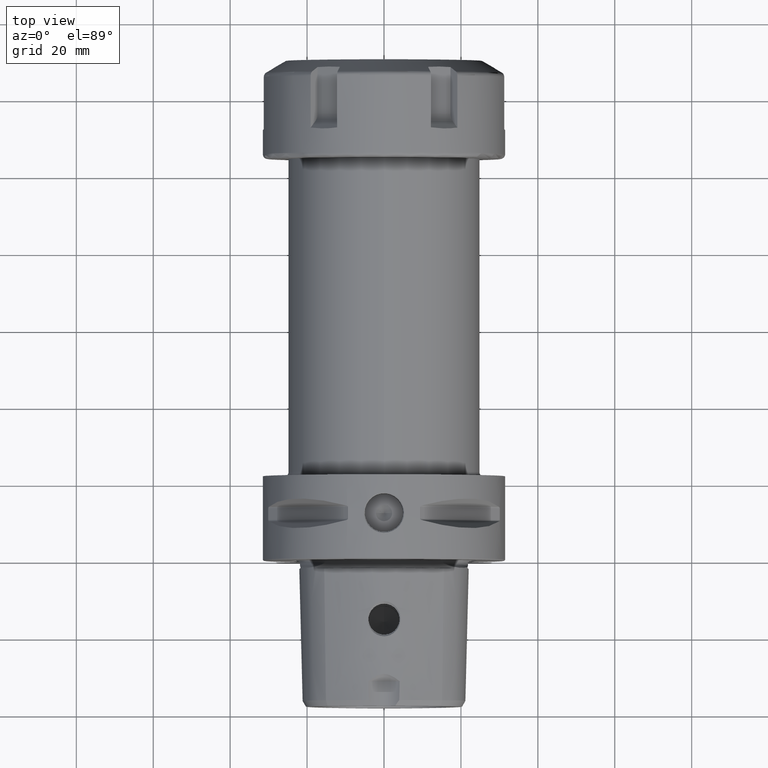
[diagram: clean part render]
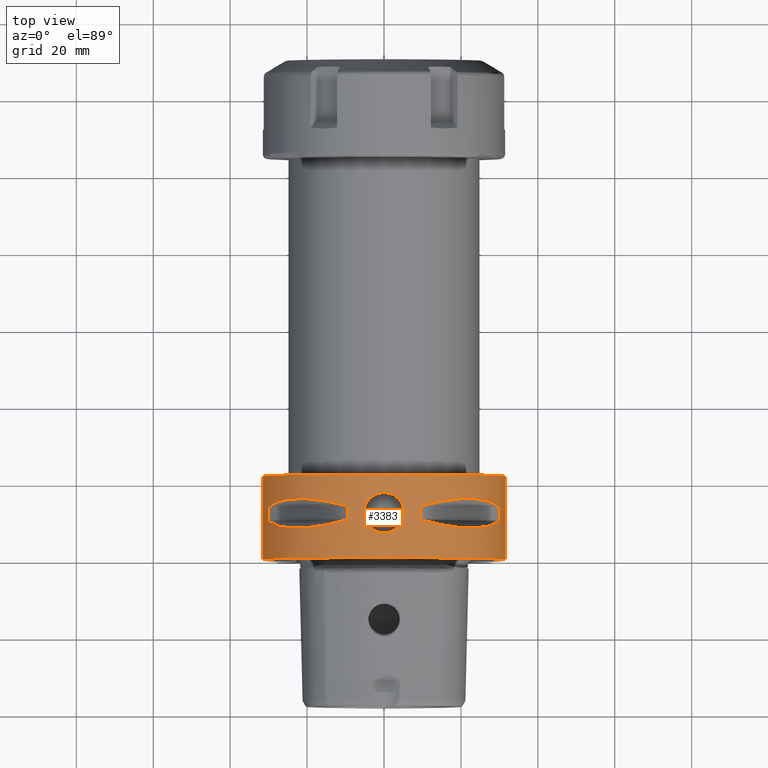
[diagram: same view with one face highlighted and labeled with its STEP entity id]
A machine part, top view. The second image highlights one B-rep face of the part: STEP entity #3383.
In plain terms, the highlighted cylindrical surface (partial cylindrical patch) has radius 31.5 mm, axis along (0, -1, 0).
Its self-contained STEP definition (entity closure, byte-faithful):
#1375=DIRECTION('',(0.E0,-1.E0,0.E0));
#1376=VECTOR('',#1375,2.922649730810E0);
#1377=CARTESIAN_POINT('',(3.008059276032E1,1.346132486541E1,9.349221314525E0));
#1378=LINE('',#1377,#1376);
#1379=CARTESIAN_POINT('',(2.991395484647E1,1.389433756730E1,9.869412618966E0));
#1380=CARTESIAN_POINT('',(2.908518363459E1,1.458150705601E1,1.238139844501E1));
#1381=CARTESIAN_POINT('',(2.691325004580E1,1.553584740593E1,1.689097893205E1));
#1382=CARTESIAN_POINT('',(2.245973816660E1,1.599114523220E1,2.245973816660E1));
#1383=CARTESIAN_POINT('',(1.689097893205E1,1.553584740593E1,2.691325004580E1));
#1384=CARTESIAN_POINT('',(1.238139844501E1,1.458150705601E1,2.908518363459E1));
#1385=CARTESIAN_POINT('',(9.869412618966E0,1.389433756730E1,2.991395484647E1));
#1387=DIRECTION('',(0.E0,-1.E0,0.E0));
#1388=VECTOR('',#1387,2.922649730810E0);
#1389=CARTESIAN_POINT('',(9.349221314525E0,1.346132486541E1,3.008059276032E1));
#1390=LINE('',#1389,#1388);
#1391=CARTESIAN_POINT('',(2.991395484647E1,1.010566243270E1,9.869412618966E0));
#1392=CARTESIAN_POINT('',(2.908518363459E1,9.418492943988E0,1.238139844501E1));
#1393=CARTESIAN_POINT('',(2.691325004580E1,8.464152594070E0,1.689097893205E1));
#1394=CARTESIAN_POINT('',(2.245973816660E1,8.008854767798E0,2.245973816660E1));
#1395=CARTESIAN_POINT('',(1.689097893205E1,8.464152594070E0,2.691325004580E1));
#1396=CARTESIAN_POINT('',(1.238139844501E1,9.418492943988E0,2.908518363459E1));
#1397=CARTESIAN_POINT('',(9.869412618966E0,1.010566243270E1,2.991395484647E1));
#1399=DIRECTION('',(0.E0,-1.E0,0.E0));
#1400=VECTOR('',#1399,2.922649730810E0);
#1401=CARTESIAN_POINT('',(-3.008059276032E1,1.346132486541E1,9.349221314525E0));
#1402=LINE('',#1401,#1400);
#1403=CARTESIAN_POINT('',(-2.991395484647E1,1.010566243270E1,9.869412618966E0));
#1404=CARTESIAN_POINT('',(-2.908518363459E1,9.418492943988E0,1.238139844501E1));
#1405=CARTESIAN_POINT('',(-2.691325004580E1,8.464152594070E0,1.689097893205E1));
#1406=CARTESIAN_POINT('',(-2.245973816660E1,8.008854767798E0,2.245973816660E1));
#1407=CARTESIAN_POINT('',(-1.689097893205E1,8.464152594070E0,2.691325004580E1));
#1408=CARTESIAN_POINT('',(-1.238139844501E1,9.418492943988E0,2.908518363459E1));
#1409=CARTESIAN_POINT('',(-9.869412618966E0,1.010566243270E1,2.991395484647E1));
#1411=DIRECTION('',(0.E0,-1.E0,0.E0));
#1412=VECTOR('',#1411,2.922649730810E0);
#1413=CARTESIAN_POINT('',(-9.349221314525E0,1.346132486541E1,3.008059276032E1));
#1414=LINE('',#1413,#1412);
#1415=CARTESIAN_POINT('',(-9.869412618966E0,1.389433756730E1,2.991395484647E1));
#1416=CARTESIAN_POINT('',(-1.238139844501E1,1.458150705601E1,2.908518363459E1));
#1417=CARTESIAN_POINT('',(-1.689097893205E1,1.553584740593E1,2.691325004580E1));
#1418=CARTESIAN_POINT('',(-2.245973816660E1,1.599114523220E1,2.245973816660E1));
#1419=CARTESIAN_POINT('',(-2.691325004580E1,1.553584740593E1,1.689097893205E1));
#1420=CARTESIAN_POINT('',(-2.908518363459E1,1.458150705601E1,1.238139844501E1));
#1421=CARTESIAN_POINT('',(-2.991395484647E1,1.389433756730E1,9.869412618966E0));
#1423=CARTESIAN_POINT('',(0.E0,3.000029778999E-1,0.E0));
#1424=DIRECTION('',(0.E0,-1.E0,0.E0));
#1425=DIRECTION('',(1.E0,0.E0,0.E0));
#1426=AXIS2_PLACEMENT_3D('',#1423,#1424,#1425);
#1428=DIRECTION('',(4.354476440736E-8,-1.E0,-1.756462563612E-10));
#1429=VECTOR('',#1428,2.169999905527E1);
#1430=CARTESIAN_POINT('',(-3.15E1,2.2E1,0.E0));
#1431=LINE('',#1430,#1429);
#1432=CARTESIAN_POINT('',(0.E0,2.2E1,0.E0));
#1433=DIRECTION('',(0.E0,1.E0,0.E0));
#1434=DIRECTION('',(-1.E0,0.E0,0.E0));
#1435=AXIS2_PLACEMENT_3D('',#1432,#1433,#1434);
#1437=DIRECTION('',(-4.354476407993E-8,-1.E0,1.756460043861E-10));
#1438=VECTOR('',#1437,2.169999905527E1);
#1439=CARTESIAN_POINT('',(3.15E1,2.2E1,0.E0));
#1440=LINE('',#1439,#1438);
#1441=CARTESIAN_POINT('',(5.256201204282E0,1.200000021276E1,3.105803467052E1));
#1442=CARTESIAN_POINT('',(5.256873096785E0,1.162594592516E1,3.105792096932E1));
#1443=CARTESIAN_POINT('',(5.177014581466E0,1.088649592639E1,3.107209729921E1));
#1444=CARTESIAN_POINT('',(4.800942945383E0,9.764868670253E0,3.113330268534E1));
#1445=CARTESIAN_POINT('',(4.169153776873E0,8.745939641349E0,3.122590165956E1));
#1446=CARTESIAN_POINT('',(3.320728407193E0,7.894102238679E0,3.132916281502E1));
#1447=CARTESIAN_POINT('',(2.315171990473E0,7.262633334301E0,3.142089099076E1));
#1448=CARTESIAN_POINT('',(1.194722320056E0,6.868451281862E0,3.148453580901E1));
#1449=CARTESIAN_POINT('',(2.330847440245E-3,6.732242465534E0,3.150769449720E1));
#1450=CARTESIAN_POINT('',(-1.191231924302E0,6.867583815239E0,3.148468576782E1));
#1451=CARTESIAN_POINT('',(-2.312511764338E0,7.261353201516E0,3.142108965125E1));
#1452=CARTESIAN_POINT('',(-3.317944712491E0,7.891925055984E0,3.132945366719E1));
#1453=CARTESIAN_POINT('',(-4.166194290150E0,8.742359626245E0,3.122630082724E1));
#1454=CARTESIAN_POINT('',(-4.799239324230E0,9.761047857447E0,3.113357512101E1));
#1455=CARTESIAN_POINT('',(-5.176814699959E0,1.088452494614E1,3.107213223488E1));
#1456=CARTESIAN_POINT('',(-5.256417589542E0,1.162521038420E1,3.105799774040E1));
#1457=CARTESIAN_POINT('',(-5.256201512035E0,1.199999978679E1,3.105803430618E1));
#1459=CARTESIAN_POINT('',(-5.256201512035E0,1.199999978679E1,3.105803430618E1));
#1460=CARTESIAN_POINT('',(-5.256873790948E0,1.237400298933E1,3.105792053960E1));
#1461=CARTESIAN_POINT('',(-5.177036640267E0,1.311338167853E1,3.107209365765E1));
#1462=CARTESIAN_POINT('',(-4.800999208393E0,1.423501827679E1,3.113329385386E1));
#1463=CARTESIAN_POINT('',(-4.169204864164E0,1.525400295358E1,3.122589505870E1));
#1464=CARTESIAN_POINT('',(-3.320748951397E0,1.610588415043E1,3.132916083811E1));
#1465=CARTESIAN_POINT('',(-2.315197998009E0,1.673735181574E1,3.142088874934E1));
#1466=CARTESIAN_POINT('',(-1.194759498429E0,1.713154381110E1,3.148453492997E1));
#1467=CARTESIAN_POINT('',(-2.300579531862E-3,1.726775898462E1,
3.150769482709E1));
#1468=CARTESIAN_POINT('',(1.191237763372E0,1.713241421074E1,3.148468533335E1));
#1469=CARTESIAN_POINT('',(2.312534594023E0,1.673863742130E1,3.142108819521E1));
#1470=CARTESIAN_POINT('',(3.317959892406E0,1.610805932204E1,3.132945172583E1));
#1471=CARTESIAN_POINT('',(4.166167535200E0,1.525766609377E1,3.122630408102E1));
#1472=CARTESIAN_POINT('',(4.799194274748E0,1.423903899390E1,3.113358215267E1));
#1473=CARTESIAN_POINT('',(5.176794576524E0,1.311558309696E1,3.107213554178E1));
#1474=CARTESIAN_POINT('',(5.256417314487E0,1.237483553859E1,3.105799809921E1));
#1475=CARTESIAN_POINT('',(5.256201204282E0,1.200000021276E1,3.105803467052E1));
#1485=CARTESIAN_POINT('',(9.349221314525E0,1.346132486541E1,3.008059276032E1));
#1486=CARTESIAN_POINT('',(9.349221314525E0,1.349504795022E1,3.008059276032E1));
#1487=CARTESIAN_POINT('',(9.362833969856E0,1.356093160788E1,3.007636824994E1));
#1488=CARTESIAN_POINT('',(9.423024234347E0,1.365492587026E1,3.005758723646E1));
#1489=CARTESIAN_POINT('',(9.505994515085E0,1.373070359192E1,3.003146987333E1));
#1490=CARTESIAN_POINT('',(9.608339142195E0,1.379587241420E1,2.999890758448E1));
#1491=CARTESIAN_POINT('',(9.730187158805E0,1.385140119697E1,2.995963363012E1));
#1492=CARTESIAN_POINT('',(9.821338983855E0,1.388118672269E1,2.992981562260E1));
#1493=CARTESIAN_POINT('',(9.869412618966E0,1.389433756730E1,2.991395484647E1));
#1495=CARTESIAN_POINT('',(2.991395484647E1,1.389433756730E1,9.869412618966E0));
#1496=CARTESIAN_POINT('',(2.992980347358E1,1.388119679596E1,9.821375807244E0));
#1497=CARTESIAN_POINT('',(2.995963527303E1,1.385138534746E1,9.730181193235E0));
#1498=CARTESIAN_POINT('',(2.999887968792E1,1.379596091020E1,9.608429051546E0));
#1499=CARTESIAN_POINT('',(3.003182263275E1,1.372995736088E1,9.504883008252E0));
#1500=CARTESIAN_POINT('',(3.005789814587E1,1.365373485983E1,9.422030217008E0));
#1501=CARTESIAN_POINT('',(3.007643801323E1,1.356016710741E1,9.362608905906E0));
#1502=CARTESIAN_POINT('',(3.008059276032E1,1.349474624232E1,9.349221314525E0));
#1503=CARTESIAN_POINT('',(3.008059276032E1,1.346132486541E1,9.349221314525E0));
#1509=CARTESIAN_POINT('',(9.869412618966E0,1.010566243270E1,2.991395484647E1));
#1510=CARTESIAN_POINT('',(9.821308210859E0,1.011882169546E1,2.992982577543E1));
#1511=CARTESIAN_POINT('',(9.729888141623E0,1.014869745425E1,2.995973108805E1));
#1512=CARTESIAN_POINT('',(9.607745799635E0,1.020442300938E1,2.999909899342E1));
#1513=CARTESIAN_POINT('',(9.503246659022E0,1.027093824207E1,3.003234338951E1));
#1514=CARTESIAN_POINT('',(9.417809222093E0,1.035109620257E1,3.005922060641E1));
#1515=CARTESIAN_POINT('',(9.361901171300E0,1.044267116295E1,3.007665631953E1));
#1516=CARTESIAN_POINT('',(9.349221314525E0,1.050643820004E1,3.008059276032E1));
#1517=CARTESIAN_POINT('',(9.349221314525E0,1.053867513459E1,3.008059276032E1));
#1519=CARTESIAN_POINT('',(3.008059276032E1,1.053867513459E1,9.349221314525E0));
#1520=CARTESIAN_POINT('',(3.008059276032E1,1.050654578135E1,9.349221314525E0));
#1521=CARTESIAN_POINT('',(3.007668038044E1,1.044299847425E1,9.361823603568E0));
#1522=CARTESIAN_POINT('',(3.005938846886E1,1.035182163747E1,9.417271451345E0));
#1523=CARTESIAN_POINT('',(3.003270270663E1,1.027180209197E1,9.502110395748E0));
#1524=CARTESIAN_POINT('',(2.999942275227E1,1.020495249529E1,9.606734803034E0));
#1525=CARTESIAN_POINT('',(2.996007806365E1,1.014909337873E1,9.728821222096E0));
#1526=CARTESIAN_POINT('',(2.992996736064E1,1.011893908978E1,9.820879069471E0));
#1527=CARTESIAN_POINT('',(2.991395484647E1,1.010566243270E1,9.869412618966E0));
#1541=CARTESIAN_POINT('',(-2.991395484647E1,1.010566243270E1,9.869412618966E0));
#1542=CARTESIAN_POINT('',(-2.992996944167E1,1.011894081525E1,9.820872761913E0));
#1543=CARTESIAN_POINT('',(-2.996008718581E1,1.014910317937E1,9.728793285311E0));
#1544=CARTESIAN_POINT('',(-2.999944598771E1,1.020498532174E1,9.606662609526E0));
#1545=CARTESIAN_POINT('',(-3.003275283675E1,1.027191829327E1,9.501952000490E0));
#1546=CARTESIAN_POINT('',(-3.005941487736E1,1.035193638725E1,9.417186844685E0));
#1547=CARTESIAN_POINT('',(-3.007668216134E1,1.044303610977E1,9.361817836042E0));
#1548=CARTESIAN_POINT('',(-3.008059276032E1,1.050655728651E1,9.349221314525E0));
#1549=CARTESIAN_POINT('',(-3.008059276032E1,1.053867513459E1,9.349221314525E0));
#1551=CARTESIAN_POINT('',(-9.349221314525E0,1.053867513459E1,3.008059276032E1));
#1552=CARTESIAN_POINT('',(-9.349221314525E0,1.050643820004E1,3.008059276032E1));
#1553=CARTESIAN_POINT('',(-9.361901171300E0,1.044267116295E1,3.007665631953E1));
#1554=CARTESIAN_POINT('',(-9.417809222093E0,1.035109620257E1,3.005922060641E1));
#1555=CARTESIAN_POINT('',(-9.503246659022E0,1.027093824207E1,3.003234338951E1));
#1556=CARTESIAN_POINT('',(-9.607745799635E0,1.020442300938E1,2.999909899342E1));
#1557=CARTESIAN_POINT('',(-9.729888141623E0,1.014869745425E1,2.995973108805E1));
#1558=CARTESIAN_POINT('',(-9.821308210859E0,1.011882169546E1,2.992982577543E1));
#1559=CARTESIAN_POINT('',(-9.869412618966E0,1.010566243270E1,2.991395484647E1));
#1565=CARTESIAN_POINT('',(-3.008059276032E1,1.346132486541E1,9.349221314525E0));
#1566=CARTESIAN_POINT('',(-3.008059276032E1,1.349469574652E1,9.349221314525E0));
#1567=CARTESIAN_POINT('',(-3.007644946554E1,1.356004198491E1,9.362571960523E0));
#1568=CARTESIAN_POINT('',(-3.005794801612E1,1.365354543677E1,9.421870780902E0));
#1569=CARTESIAN_POINT('',(-3.003186978023E1,1.372986453349E1,9.504734744835E0));
#1570=CARTESIAN_POINT('',(-2.999885204860E1,1.379601190466E1,9.608515690181E0));
#1571=CARTESIAN_POINT('',(-2.995963612130E1,1.385137935819E1,9.730178159227E0));
#1572=CARTESIAN_POINT('',(-2.992980233681E1,1.388119773850E1,9.821379252758E0));
#1573=CARTESIAN_POINT('',(-2.991395484647E1,1.389433756730E1,9.869412618966E0));
#1575=CARTESIAN_POINT('',(-9.869412618966E0,1.389433756730E1,2.991395484647E1));
#1576=CARTESIAN_POINT('',(-9.821338983855E0,1.388118672269E1,2.992981562260E1));
#1577=CARTESIAN_POINT('',(-9.730187158805E0,1.385140119697E1,2.995963363012E1));
#1578=CARTESIAN_POINT('',(-9.608339142194E0,1.379587241420E1,2.999890758448E1));
#1579=CARTESIAN_POINT('',(-9.505994515085E0,1.373070359192E1,3.003146987333E1));
#1580=CARTESIAN_POINT('',(-9.423024234347E0,1.365492587026E1,3.005758723646E1));
#1581=CARTESIAN_POINT('',(-9.362833969856E0,1.356093160788E1,3.007636824994E1));
#1582=CARTESIAN_POINT('',(-9.349221314525E0,1.349504795022E1,3.008059276032E1));
#1583=CARTESIAN_POINT('',(-9.349221314525E0,1.346132486541E1,3.008059276032E1));
#1806=CARTESIAN_POINT('',(-3.15E1,2.2E1,0.E0));
#1807=CARTESIAN_POINT('',(3.15E1,2.2E1,0.E0));
#1808=VERTEX_POINT('',#1806);
#1809=VERTEX_POINT('',#1807);
#1814=CARTESIAN_POINT('',(3.15E1,3.000029778999E-1,0.E0));
#1815=CARTESIAN_POINT('',(-3.15E1,3.000029778999E-1,0.E0));
#1816=VERTEX_POINT('',#1814);
#1817=VERTEX_POINT('',#1815);
#1878=CARTESIAN_POINT('',(9.349221314525E0,1.346132486541E1,3.008059276032E1));
#1879=CARTESIAN_POINT('',(3.008059276032E1,1.346132486541E1,9.349221314525E0));
#1880=VERTEX_POINT('',#1878);
#1881=VERTEX_POINT('',#1879);
#1882=CARTESIAN_POINT('',(9.869412618966E0,1.389433756730E1,2.991395484647E1));
#1883=CARTESIAN_POINT('',(2.991395484647E1,1.389433756730E1,9.869412618966E0));
#1884=VERTEX_POINT('',#1882);
#1885=VERTEX_POINT('',#1883);
#1886=CARTESIAN_POINT('',(9.869412618966E0,1.010566243270E1,2.991395484647E1));
#1887=CARTESIAN_POINT('',(2.991395484647E1,1.010566243270E1,9.869412618966E0));
#1888=VERTEX_POINT('',#1886);
#1889=VERTEX_POINT('',#1887);
#1890=CARTESIAN_POINT('',(9.349221314525E0,1.053867513459E1,3.008059276032E1));
#1891=CARTESIAN_POINT('',(3.008059276032E1,1.053867513459E1,9.349221314525E0));
#1892=VERTEX_POINT('',#1890);
#1893=VERTEX_POINT('',#1891);
#1894=CARTESIAN_POINT('',(-2.991395484647E1,1.010566243270E1,9.869412618966E0));
#1895=CARTESIAN_POINT('',(-9.869412618966E0,1.010566243270E1,2.991395484647E1));
#1896=VERTEX_POINT('',#1894);
#1897=VERTEX_POINT('',#1895);
#1898=CARTESIAN_POINT('',(-3.008059276032E1,1.053867513459E1,9.349221314525E0));
#1899=CARTESIAN_POINT('',(-9.349221314525E0,1.053867513459E1,3.008059276032E1));
#1900=VERTEX_POINT('',#1898);
#1901=VERTEX_POINT('',#1899);
#1902=CARTESIAN_POINT('',(-3.008059276032E1,1.346132486541E1,9.349221314525E0));
#1903=CARTESIAN_POINT('',(-9.349221314525E0,1.346132486541E1,3.008059276032E1));
#1904=VERTEX_POINT('',#1902);
#1905=VERTEX_POINT('',#1903);
#1906=CARTESIAN_POINT('',(-2.991395484647E1,1.389433756730E1,9.869412618966E0));
#1907=CARTESIAN_POINT('',(-9.869412618966E0,1.389433756730E1,2.991395484647E1));
#1908=VERTEX_POINT('',#1906);
#1909=VERTEX_POINT('',#1907);
#2058=VERTEX_POINT('',#1441);
#2059=VERTEX_POINT('',#1457);
#3329=CARTESIAN_POINT('',(0.E0,2.311E1,0.E0));
#3330=DIRECTION('',(0.E0,-1.E0,0.E0));
#3331=DIRECTION('',(-1.E0,0.E0,0.E0));
#3332=AXIS2_PLACEMENT_3D('',#3329,#3330,#3331);
#3333=CYLINDRICAL_SURFACE('',#3332,3.15E1);
#3334=ORIENTED_EDGE('',*,*,#3138,.T.);
#3335=ORIENTED_EDGE('',*,*,#3168,.F.);
#3337=ORIENTED_EDGE('',*,*,#3336,.T.);
#3338=ORIENTED_EDGE('',*,*,#3164,.T.);
#3339=EDGE_LOOP('',(#3334,#3335,#3337,#3338));
#3340=FACE_OUTER_BOUND('',#3339,.F.);
#3342=ORIENTED_EDGE('',*,*,#3341,.F.);
#3344=ORIENTED_EDGE('',*,*,#3343,.F.);
#3346=ORIENTED_EDGE('',*,*,#3345,.T.);
#3348=ORIENTED_EDGE('',*,*,#3347,.F.);
#3350=ORIENTED_EDGE('',*,*,#3349,.T.);
#3352=ORIENTED_EDGE('',*,*,#3351,.F.);
#3354=ORIENTED_EDGE('',*,*,#3353,.F.);
#3356=ORIENTED_EDGE('',*,*,#3355,.F.);
#3357=EDGE_LOOP('',(#3342,#3344,#3346,#3348,#3350,#3352,#3354,#3356));
#3358=FACE_BOUND('',#3357,.F.);
#3360=ORIENTED_EDGE('',*,*,#3359,.T.);
#3362=ORIENTED_EDGE('',*,*,#3361,.F.);
#3364=ORIENTED_EDGE('',*,*,#3363,.T.);
#3366=ORIENTED_EDGE('',*,*,#3365,.F.);
#3368=ORIENTED_EDGE('',*,*,#3367,.F.);
#3370=ORIENTED_EDGE('',*,*,#3369,.F.);
#3372=ORIENTED_EDGE('',*,*,#3371,.T.);
#3374=ORIENTED_EDGE('',*,*,#3373,.F.);
#3375=EDGE_LOOP('',(#3360,#3362,#3364,#3366,#3368,#3370,#3372,#3374));
#3376=FACE_BOUND('',#3375,.F.);
#3378=ORIENTED_EDGE('',*,*,#3377,.F.);
#3380=ORIENTED_EDGE('',*,*,#3379,.F.);
#3381=EDGE_LOOP('',(#3378,#3380));
#3382=FACE_BOUND('',#3381,.F.);
#3383=ADVANCED_FACE('',(#3340,#3358,#3376,#3382),#3333,.T.);
#1386=B_SPLINE_CURVE_WITH_KNOTS('',3,(#1379,#1380,#1381,#1382,#1383,#1384,
#1385),.UNSPECIFIED.,.F.,.F.,(4,1,1,1,4),(0.E0,2.5E-1,5.E-1,7.5E-1,1.E0),
.UNSPECIFIED.);
#1398=B_SPLINE_CURVE_WITH_KNOTS('',3,(#1391,#1392,#1393,#1394,#1395,#1396,
#1397),.UNSPECIFIED.,.F.,.F.,(4,1,1,1,4),(0.E0,2.5E-1,5.E-1,7.5E-1,1.E0),
.UNSPECIFIED.);
#1410=B_SPLINE_CURVE_WITH_KNOTS('',3,(#1403,#1404,#1405,#1406,#1407,#1408,
#1409),.UNSPECIFIED.,.F.,.F.,(4,1,1,1,4),(0.E0,2.5E-1,5.E-1,7.5E-1,1.E0),
.UNSPECIFIED.);
#1422=B_SPLINE_CURVE_WITH_KNOTS('',3,(#1415,#1416,#1417,#1418,#1419,#1420,
#1421),.UNSPECIFIED.,.F.,.F.,(4,1,1,1,4),(0.E0,2.5E-1,5.E-1,7.5E-1,1.E0),
.UNSPECIFIED.);
#1427=CIRCLE('',#1426,3.15E1);
#1436=CIRCLE('',#1435,3.15E1);
#1458=B_SPLINE_CURVE_WITH_KNOTS('',3,(#1441,#1442,#1443,#1444,#1445,#1446,#1447,
#1448,#1449,#1450,#1451,#1452,#1453,#1454,#1455,#1456,#1457),.UNSPECIFIED.,.F.,
.F.,(4,1,1,1,1,1,1,1,1,1,1,1,1,1,4),(0.E0,7.142857142857E-2,1.428571428571E-1,
2.142857142857E-1,2.857142857143E-1,3.571428571429E-1,4.285714285714E-1,5.E-1,
5.714285714286E-1,6.428571428571E-1,7.142857142857E-1,7.857142857143E-1,
8.571428571429E-1,9.285714285714E-1,1.E0),.UNSPECIFIED.);
#1476=B_SPLINE_CURVE_WITH_KNOTS('',3,(#1459,#1460,#1461,#1462,#1463,#1464,#1465,
#1466,#1467,#1468,#1469,#1470,#1471,#1472,#1473,#1474,#1475),.UNSPECIFIED.,.F.,
.F.,(4,1,1,1,1,1,1,1,1,1,1,1,1,1,4),(0.E0,7.142857142857E-2,1.428571428571E-1,
2.142857142857E-1,2.857142857143E-1,3.571428571429E-1,4.285714285714E-1,5.E-1,
5.714285714286E-1,6.428571428571E-1,7.142857142857E-1,7.857142857143E-1,
8.571428571429E-1,9.285714285714E-1,1.E0),.UNSPECIFIED.);
#1494=B_SPLINE_CURVE_WITH_KNOTS('',3,(#1485,#1486,#1487,#1488,#1489,#1490,#1491,
#1492,#1493),.UNSPECIFIED.,.F.,.F.,(4,1,1,1,1,1,4),(0.E0,1.666666666667E-1,
3.333333333333E-1,5.E-1,6.666666666667E-1,8.333333333333E-1,1.E0),
.UNSPECIFIED.);
#1504=B_SPLINE_CURVE_WITH_KNOTS('',3,(#1495,#1496,#1497,#1498,#1499,#1500,#1501,
#1502,#1503),.UNSPECIFIED.,.F.,.F.,(4,1,1,1,1,1,4),(0.E0,1.666666666667E-1,
3.333333333333E-1,5.E-1,6.666666666667E-1,8.333333333333E-1,1.E0),
.UNSPECIFIED.);
#1518=B_SPLINE_CURVE_WITH_KNOTS('',3,(#1509,#1510,#1511,#1512,#1513,#1514,#1515,
#1516,#1517),.UNSPECIFIED.,.F.,.F.,(4,1,1,1,1,1,4),(0.E0,1.666666666667E-1,
3.333333333333E-1,5.E-1,6.666666666667E-1,8.333333333333E-1,1.E0),
.UNSPECIFIED.);
#1528=B_SPLINE_CURVE_WITH_KNOTS('',3,(#1519,#1520,#1521,#1522,#1523,#1524,#1525,
#1526,#1527),.UNSPECIFIED.,.F.,.F.,(4,1,1,1,1,1,4),(0.E0,1.666666666667E-1,
3.333333333333E-1,5.E-1,6.666666666667E-1,8.333333333333E-1,1.E0),
.UNSPECIFIED.);
#1550=B_SPLINE_CURVE_WITH_KNOTS('',3,(#1541,#1542,#1543,#1544,#1545,#1546,#1547,
#1548,#1549),.UNSPECIFIED.,.F.,.F.,(4,1,1,1,1,1,4),(0.E0,1.666666666667E-1,
3.333333333333E-1,5.E-1,6.666666666667E-1,8.333333333333E-1,1.E0),
.UNSPECIFIED.);
#1560=B_SPLINE_CURVE_WITH_KNOTS('',3,(#1551,#1552,#1553,#1554,#1555,#1556,#1557,
#1558,#1559),.UNSPECIFIED.,.F.,.F.,(4,1,1,1,1,1,4),(0.E0,1.666666666667E-1,
3.333333333333E-1,5.E-1,6.666666666667E-1,8.333333333333E-1,1.E0),
.UNSPECIFIED.);
#1574=B_SPLINE_CURVE_WITH_KNOTS('',3,(#1565,#1566,#1567,#1568,#1569,#1570,#1571,
#1572,#1573),.UNSPECIFIED.,.F.,.F.,(4,1,1,1,1,1,4),(0.E0,1.666666666667E-1,
3.333333333333E-1,5.E-1,6.666666666667E-1,8.333333333333E-1,1.E0),
.UNSPECIFIED.);
#1584=B_SPLINE_CURVE_WITH_KNOTS('',3,(#1575,#1576,#1577,#1578,#1579,#1580,#1581,
#1582,#1583),.UNSPECIFIED.,.F.,.F.,(4,1,1,1,1,1,4),(0.E0,1.666666666667E-1,
3.333333333333E-1,5.E-1,6.666666666667E-1,8.333333333333E-1,1.E0),
.UNSPECIFIED.);
#3138=EDGE_CURVE('',#1816,#1817,#1427,.T.);
#3164=EDGE_CURVE('',#1809,#1816,#1440,.T.);
#3168=EDGE_CURVE('',#1808,#1817,#1431,.T.);
#3336=EDGE_CURVE('',#1808,#1809,#1436,.T.);
#3341=EDGE_CURVE('',#1881,#1893,#1378,.T.);
#3343=EDGE_CURVE('',#1885,#1881,#1504,.T.);
#3345=EDGE_CURVE('',#1885,#1884,#1386,.T.);
#3347=EDGE_CURVE('',#1880,#1884,#1494,.T.);
#3349=EDGE_CURVE('',#1880,#1892,#1390,.T.);
#3351=EDGE_CURVE('',#1888,#1892,#1518,.T.);
#3353=EDGE_CURVE('',#1889,#1888,#1398,.T.);
#3355=EDGE_CURVE('',#1893,#1889,#1528,.T.);
#3359=EDGE_CURVE('',#1904,#1900,#1402,.T.);
#3361=EDGE_CURVE('',#1896,#1900,#1550,.T.);
#3363=EDGE_CURVE('',#1896,#1897,#1410,.T.);
#3365=EDGE_CURVE('',#1901,#1897,#1560,.T.);
#3367=EDGE_CURVE('',#1905,#1901,#1414,.T.);
#3369=EDGE_CURVE('',#1909,#1905,#1584,.T.);
#3371=EDGE_CURVE('',#1909,#1908,#1422,.T.);
#3373=EDGE_CURVE('',#1904,#1908,#1574,.T.);
#3377=EDGE_CURVE('',#2058,#2059,#1458,.T.);
#3379=EDGE_CURVE('',#2059,#2058,#1476,.T.);